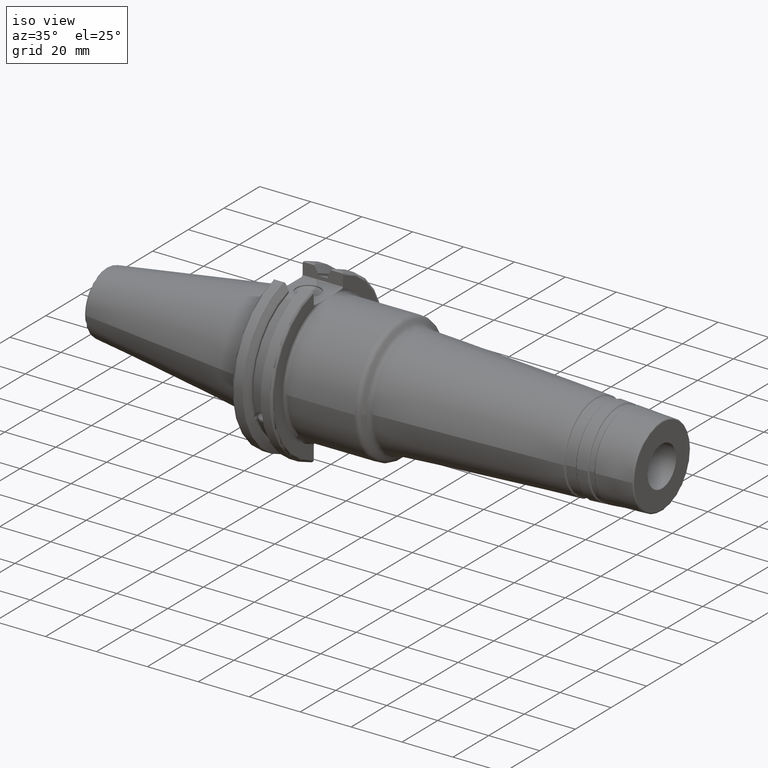
[diagram: clean part render]
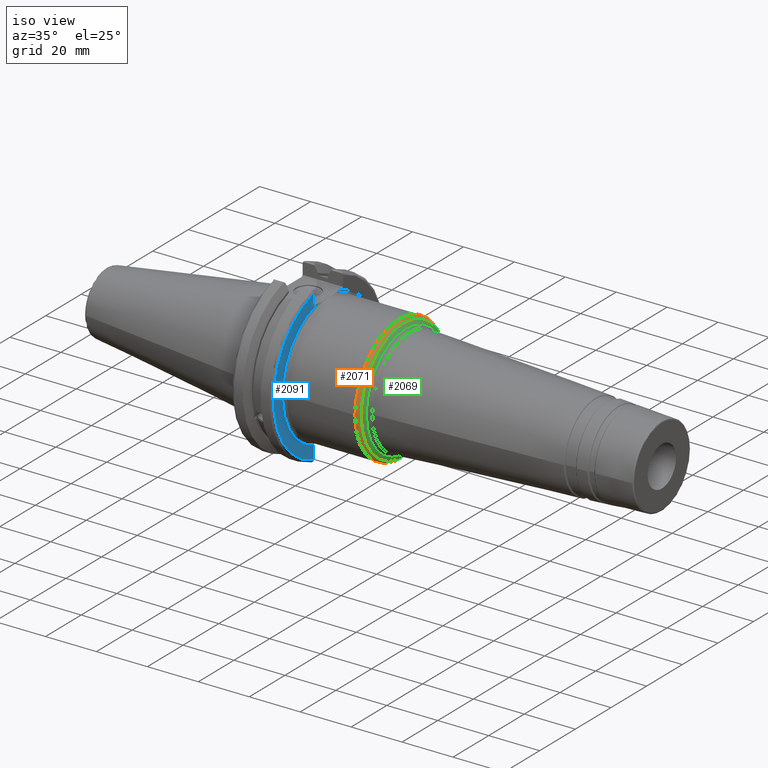
[diagram: same view with three faces highlighted in distinct colors, each labeled with its STEP entity id]
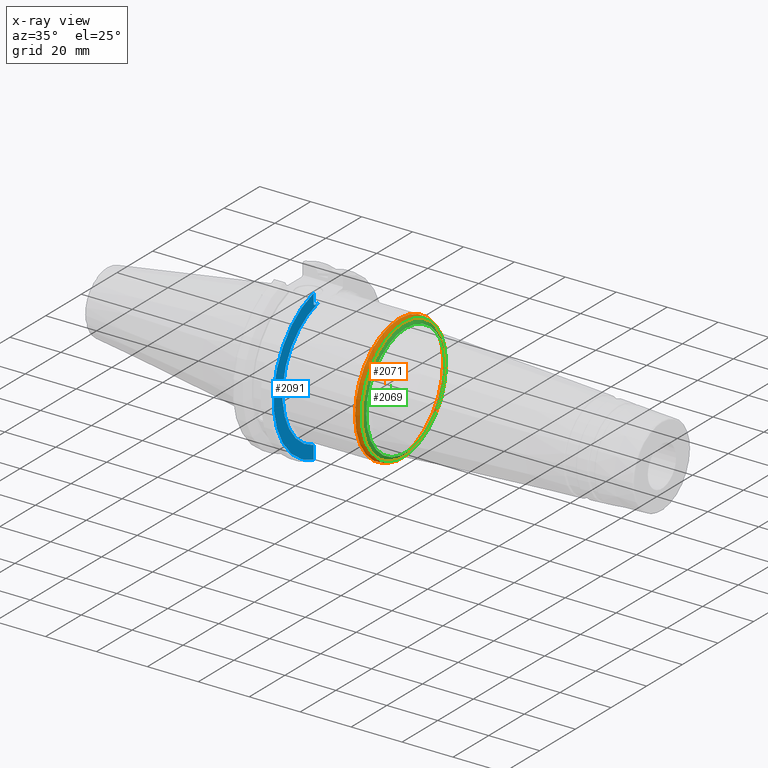
[diagram: x-ray of the same camera — body ghosted, the three highlighted faces saturated]
A machine part, iso view with three faces highlighted in distinct colors.
The next image is the same camera in x-ray (body ghosted, the three faces saturated) — at least one of them is partly hidden behind the body in this view.
Their STEP definitions:

[orange] entity #2071 — the highlighted toroidal blend (fillet) surface has major radius 22.75 mm and minor (blend) radius 2 mm.
#86=TOROIDAL_SURFACE('',#2223,22.75,2.);
#190=FACE_OUTER_BOUND('',#298,.T.);
#298=EDGE_LOOP('',(#1418,#1419,#1420,#1421,#1422,#1423,#1424,#1425));
#615=CIRCLE('',#2202,24.75);
#616=CIRCLE('',#2203,24.75);
#619=CIRCLE('',#2206,24.75);
#627=CIRCLE('',#2216,23.75);
#628=CIRCLE('',#2217,23.75);
#629=CIRCLE('',#2218,23.75);
#633=CIRCLE('',#2224,2.);
#795=VERTEX_POINT('',#3305);
#796=VERTEX_POINT('',#3306);
#797=VERTEX_POINT('',#3308);
#805=VERTEX_POINT('',#3330);
#806=VERTEX_POINT('',#3332);
#807=VERTEX_POINT('',#3334);
#1039=EDGE_CURVE('',#795,#796,#615,.T.);
#1040=EDGE_CURVE('',#797,#795,#616,.T.);
#1044=EDGE_CURVE('',#796,#797,#619,.T.);
#1053=EDGE_CURVE('',#806,#805,#627,.T.);
#1054=EDGE_CURVE('',#807,#806,#628,.T.);
#1055=EDGE_CURVE('',#805,#807,#629,.T.);
#1060=EDGE_CURVE('',#807,#796,#633,.T.);
#1418=ORIENTED_EDGE('',*,*,#1053,.T.);
#1419=ORIENTED_EDGE('',*,*,#1055,.T.);
#1420=ORIENTED_EDGE('',*,*,#1060,.T.);
#1421=ORIENTED_EDGE('',*,*,#1044,.T.);
#1422=ORIENTED_EDGE('',*,*,#1040,.T.);
#1423=ORIENTED_EDGE('',*,*,#1039,.T.);
#1424=ORIENTED_EDGE('',*,*,#1060,.F.);
#1425=ORIENTED_EDGE('',*,*,#1054,.T.);
#2071=ADVANCED_FACE('',(#190),#86,.T.);
#2202=AXIS2_PLACEMENT_3D('',#3307,#2519,#2520);
#2203=AXIS2_PLACEMENT_3D('',#3309,#2521,#2522);
#2206=AXIS2_PLACEMENT_3D('',#3314,#2528,#2529);
#2216=AXIS2_PLACEMENT_3D('',#3333,#2549,#2550);
#2217=AXIS2_PLACEMENT_3D('',#3335,#2551,#2552);
#2218=AXIS2_PLACEMENT_3D('',#3336,#2553,#2554);
#2223=AXIS2_PLACEMENT_3D('',#3345,#2564,#2565);
#2224=AXIS2_PLACEMENT_3D('',#3346,#2566,#2567);
#2519=DIRECTION('center_axis',(1.,0.,0.));
#2520=DIRECTION('ref_axis',(0.,-1.,1.83697019872103E-16));
#2521=DIRECTION('center_axis',(1.,0.,0.));
#2522=DIRECTION('ref_axis',(0.,-1.,1.83697019872103E-16));
#2528=DIRECTION('center_axis',(1.,0.,0.));
#2529=DIRECTION('ref_axis',(0.,-1.,1.83697019872103E-16));
#2549=DIRECTION('center_axis',(-1.,0.,0.));
#2550=DIRECTION('ref_axis',(0.,-1.,3.06161699786838E-17));
#2551=DIRECTION('center_axis',(-1.,0.,0.));
#2552=DIRECTION('ref_axis',(0.,-1.,3.06161699786838E-17));
#2553=DIRECTION('center_axis',(-1.,0.,0.));
#2554=DIRECTION('ref_axis',(0.,-1.,3.06161699786838E-17));
#2564=DIRECTION('center_axis',(1.,0.,0.));
#2565=DIRECTION('ref_axis',(0.,0.,-1.));
#2566=DIRECTION('center_axis',(0.,-1.,-1.22464679914735E-16));
#2567=DIRECTION('ref_axis',(0.,-1.22464679914735E-16,1.));
#3305=CARTESIAN_POINT('',(46.8192491538809,24.75,-1.51550041394485E-15));
#3306=CARTESIAN_POINT('',(46.8192491538809,-3.0310008278897E-15,24.75));
#3307=CARTESIAN_POINT('Origin',(46.8192491538809,0.,0.));
#3308=CARTESIAN_POINT('',(46.8192491538809,-24.75,-3.0310008278897E-15));
#3309=CARTESIAN_POINT('Origin',(46.8192491538809,0.,0.));
#3314=CARTESIAN_POINT('Origin',(46.8192491538809,0.,0.));
#3330=CARTESIAN_POINT('',(48.5512999614498,-23.75,-2.90853614797496E-15));
#3332=CARTESIAN_POINT('',(48.5512999614498,23.75,-7.27134036993741E-15));
#3333=CARTESIAN_POINT('Origin',(48.5512999614498,0.,-3.6356701849687E-15));
#3334=CARTESIAN_POINT('',(48.5512999614498,-2.90853614797496E-15,23.75));
#3335=CARTESIAN_POINT('Origin',(48.5512999614498,0.,-3.6356701849687E-15));
#3336=CARTESIAN_POINT('Origin',(48.5512999614498,0.,-3.6356701849687E-15));
#3345=CARTESIAN_POINT('Origin',(46.8192491538809,0.,0.));
#3346=CARTESIAN_POINT('Origin',(46.8192491538809,-2.78607146806023E-15,
22.75));

[blue] entity #2091 — the highlighted planar face has unit normal (1, 0, 0).
#50=PLANE('',#2307);
#210=FACE_OUTER_BOUND('',#319,.T.);
#319=EDGE_LOOP('',(#1572,#1573,#1574,#1575,#1576,#1577));
#425=LINE('',#3525,#524);
#426=LINE('',#3527,#525);
#427=LINE('',#3529,#526);
#428=LINE('',#3532,#527);
#524=VECTOR('',#2742,10.);
#525=VECTOR('',#2743,10.);
#526=VECTOR('',#2744,10.);
#527=VECTOR('',#2747,10.);
#695=CIRCLE('',#2305,25.75);
#697=CIRCLE('',#2308,30.75);
#863=VERTEX_POINT('',#3487);
#865=VERTEX_POINT('',#3499);
#867=VERTEX_POINT('',#3524);
#868=VERTEX_POINT('',#3526);
#869=VERTEX_POINT('',#3528);
#870=VERTEX_POINT('',#3530);
#1131=EDGE_CURVE('',#863,#865,#695,.T.);
#1135=EDGE_CURVE('',#863,#867,#425,.T.);
#1136=EDGE_CURVE('',#868,#867,#426,.T.);
#1137=EDGE_CURVE('',#868,#869,#427,.T.);
#1138=EDGE_CURVE('',#870,#869,#697,.T.);
#1139=EDGE_CURVE('',#870,#865,#428,.T.);
#1572=ORIENTED_EDGE('',*,*,#1131,.F.);
#1573=ORIENTED_EDGE('',*,*,#1135,.T.);
#1574=ORIENTED_EDGE('',*,*,#1136,.F.);
#1575=ORIENTED_EDGE('',*,*,#1137,.T.);
#1576=ORIENTED_EDGE('',*,*,#1138,.F.);
#1577=ORIENTED_EDGE('',*,*,#1139,.T.);
#2091=ADVANCED_FACE('',(#210),#50,.T.);
#2305=AXIS2_PLACEMENT_3D('',#3500,#2736,#2737);
#2307=AXIS2_PLACEMENT_3D('',#3523,#2740,#2741);
#2308=AXIS2_PLACEMENT_3D('',#3531,#2745,#2746);
#2736=DIRECTION('center_axis',(1.,0.,0.));
#2737=DIRECTION('ref_axis',(0.,6.12323399573677E-17,1.));
#2740=DIRECTION('center_axis',(1.,0.,0.));
#2741=DIRECTION('ref_axis',(0.,0.,-1.));
#2742=DIRECTION('',(0.,-1.,0.));
#2743=DIRECTION('',(0.,0.70710678118655,-0.707106781186545));
#2744=DIRECTION('',(0.,0.,1.));
#2745=DIRECTION('center_axis',(-1.,0.,0.));
#2746=DIRECTION('ref_axis',(0.,-1.,1.60812264967664E-16));
#2747=DIRECTION('',(0.,0.,1.));
#3487=CARTESIAN_POINT('',(19.05,-6.16948133962654,25.));
#3499=CARTESIAN_POINT('',(19.05,-8.19,-24.4128326910254));
#3500=CARTESIAN_POINT('Origin',(19.05,0.,0.));
#3523=CARTESIAN_POINT('Origin',(19.05,0.,0.));
#3524=CARTESIAN_POINT('',(19.05,-7.69,25.));
#3525=CARTESIAN_POINT('',(19.05,0.,25.));
#3526=CARTESIAN_POINT('',(19.05,-8.19,25.5));
#3527=CARTESIAN_POINT('',(19.05,0.357500000000014,16.9525));
#3528=CARTESIAN_POINT('',(19.05,-8.19,29.6392712461019));
#3529=CARTESIAN_POINT('',(19.05,-8.19,12.5));
#3530=CARTESIAN_POINT('',(19.05,-8.19,-29.6392712461019));
#3531=CARTESIAN_POINT('Origin',(19.05,0.,0.));
#3532=CARTESIAN_POINT('',(19.05,-8.19,-11.3));

[green] entity #2069 — the highlighted conical surface has half-angle 60 deg.
#188=FACE_OUTER_BOUND('',#296,.T.);
#296=EDGE_LOOP('',(#1402,#1403,#1404,#1405,#1406,#1407,#1408,#1409));
#415=LINE('',#3331,#514);
#514=VECTOR('',#2548,22.995388964152);
#620=CIRCLE('',#2208,22.181204786337);
#625=CIRCLE('',#2213,22.181204786337);
#626=CIRCLE('',#2214,22.181204786337);
#627=CIRCLE('',#2216,23.75);
#628=CIRCLE('',#2217,23.75);
#629=CIRCLE('',#2218,23.75);
#799=VERTEX_POINT('',#3316);
#800=VERTEX_POINT('',#3317);
#804=VERTEX_POINT('',#3326);
#805=VERTEX_POINT('',#3330);
#806=VERTEX_POINT('',#3332);
#807=VERTEX_POINT('',#3334);
#1045=EDGE_CURVE('',#799,#800,#620,.T.);
#1050=EDGE_CURVE('',#800,#804,#625,.T.);
#1051=EDGE_CURVE('',#804,#799,#626,.T.);
#1052=EDGE_CURVE('',#804,#805,#415,.T.);
#1053=EDGE_CURVE('',#806,#805,#627,.T.);
#1054=EDGE_CURVE('',#807,#806,#628,.T.);
#1055=EDGE_CURVE('',#805,#807,#629,.T.);
#1402=ORIENTED_EDGE('',*,*,#1045,.F.);
#1403=ORIENTED_EDGE('',*,*,#1051,.F.);
#1404=ORIENTED_EDGE('',*,*,#1052,.T.);
#1405=ORIENTED_EDGE('',*,*,#1053,.F.);
#1406=ORIENTED_EDGE('',*,*,#1054,.F.);
#1407=ORIENTED_EDGE('',*,*,#1055,.F.);
#1408=ORIENTED_EDGE('',*,*,#1052,.F.);
#1409=ORIENTED_EDGE('',*,*,#1050,.F.);
#2042=CONICAL_SURFACE('',#2215,22.995388964152,1.0471975511966);
#2069=ADVANCED_FACE('',(#188),#2042,.T.);
#2208=AXIS2_PLACEMENT_3D('',#3318,#2532,#2533);
#2213=AXIS2_PLACEMENT_3D('',#3327,#2542,#2543);
#2214=AXIS2_PLACEMENT_3D('',#3328,#2544,#2545);
#2215=AXIS2_PLACEMENT_3D('',#3329,#2546,#2547);
#2216=AXIS2_PLACEMENT_3D('',#3333,#2549,#2550);
#2217=AXIS2_PLACEMENT_3D('',#3335,#2551,#2552);
#2218=AXIS2_PLACEMENT_3D('',#3336,#2553,#2554);
#2532=DIRECTION('center_axis',(1.,0.,0.));
#2533=DIRECTION('ref_axis',(0.,-1.,3.06161699786838E-17));
#2542=DIRECTION('center_axis',(1.,0.,0.));
#2543=DIRECTION('ref_axis',(0.,-1.,3.06161699786838E-17));
#2544=DIRECTION('center_axis',(1.,0.,0.));
#2545=DIRECTION('ref_axis',(0.,-1.,3.06161699786838E-17));
#2546=DIRECTION('center_axis',(-1.,0.,0.));
#2547=DIRECTION('ref_axis',(0.,1.,0.));
#2548=DIRECTION('',(-0.5,-0.866025403784439,-1.06057523872491E-16));
#2549=DIRECTION('center_axis',(-1.,0.,0.));
#2550=DIRECTION('ref_axis',(0.,-1.,3.06161699786838E-17));
#2551=DIRECTION('center_axis',(-1.,0.,0.));
#2552=DIRECTION('ref_axis',(0.,-1.,3.06161699786838E-17));
#2553=DIRECTION('center_axis',(-1.,0.,0.));
#2554=DIRECTION('ref_axis',(0.,-1.,3.06161699786838E-17));
#3316=CARTESIAN_POINT('',(49.4570443003616,22.181204786337,-1.35820707214098E-15));
#3317=CARTESIAN_POINT('',(49.4570443003616,-2.71641414428195E-15,22.181204786337));
#3318=CARTESIAN_POINT('Origin',(49.4570443003616,0.,-3.39551768035244E-15));
#3326=CARTESIAN_POINT('',(49.4570443003616,-22.181204786337,-2.71641414428195E-15));
#3327=CARTESIAN_POINT('Origin',(49.4570443003616,0.,-3.39551768035244E-15));
#3328=CARTESIAN_POINT('Origin',(49.4570443003616,0.,-3.39551768035244E-15));
#3329=CARTESIAN_POINT('Origin',(48.9869748461301,0.,0.));
#3330=CARTESIAN_POINT('',(48.5512999614498,-23.75,-2.90853614797496E-15));
#3331=CARTESIAN_POINT('',(48.9869748461301,-22.995388964152,-2.81612294900972E-15));
#3332=CARTESIAN_POINT('',(48.5512999614498,23.75,-7.27134036993741E-15));
#3333=CARTESIAN_POINT('Origin',(48.5512999614498,0.,-3.6356701849687E-15));
#3334=CARTESIAN_POINT('',(48.5512999614498,-2.90853614797496E-15,23.75));
#3335=CARTESIAN_POINT('Origin',(48.5512999614498,0.,-3.6356701849687E-15));
#3336=CARTESIAN_POINT('Origin',(48.5512999614498,0.,-3.6356701849687E-15));